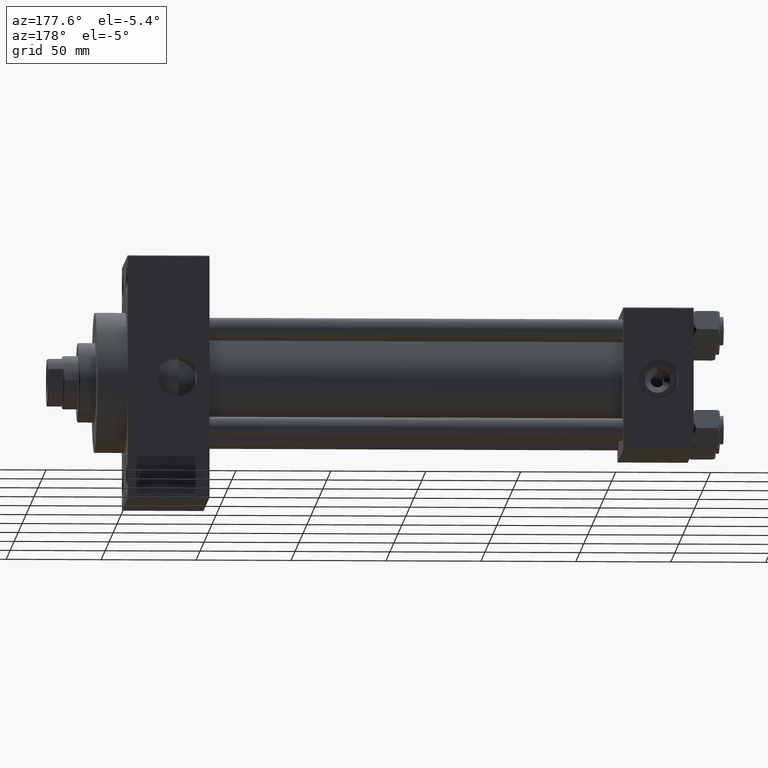
[diagram: clean part render]
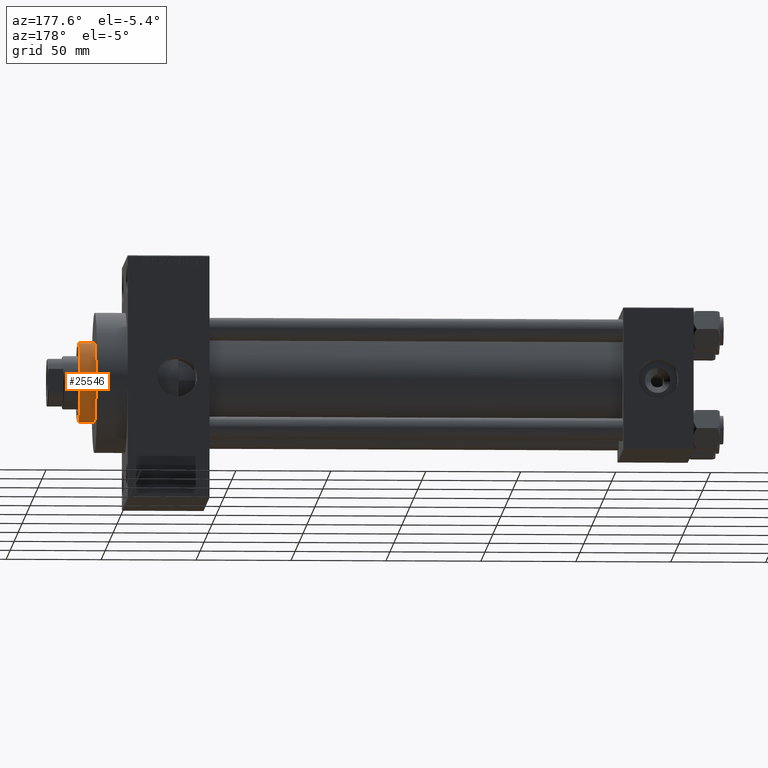
[diagram: same view with one face highlighted and labeled with its STEP entity id]
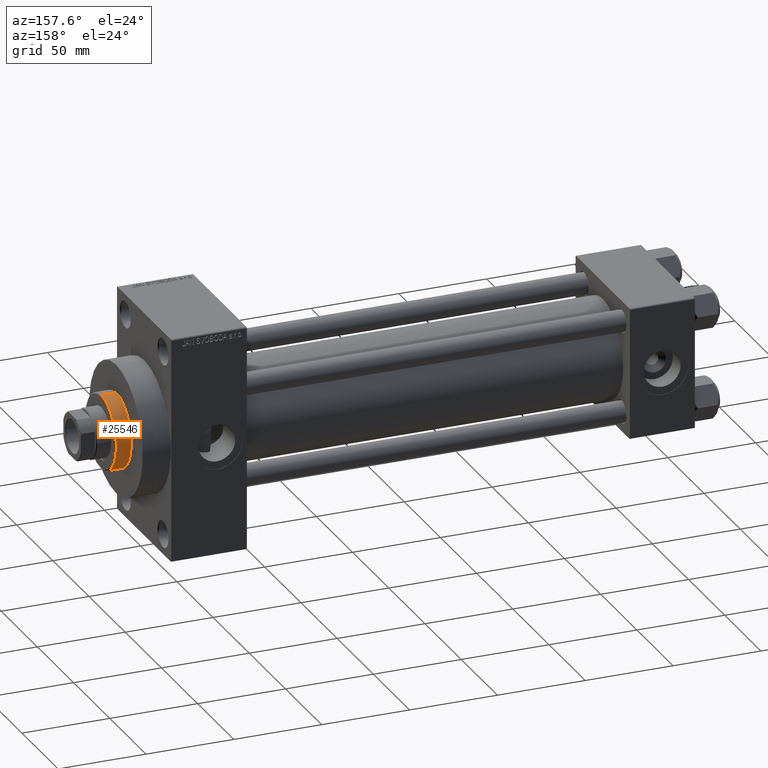
[diagram: same view with one face highlighted and labeled with its STEP entity id]
A machine part, auxiliary view. The second image highlights one B-rep face of the part: STEP entity #25546.
A second angle (auxiliary view) of the same face is appended — the face is thin or edge-on in the first view.
In plain terms, the highlighted cylindrical surface (partial cylindrical patch) has radius 21 mm, axis along (-1, 0, 0).
Its self-contained STEP definition (entity closure, byte-faithful):
#1552 = ORIENTED_EDGE ( 'NONE', *, *, #7914, .T. ) ;
#2191 = DIRECTION ( 'NONE',  ( -0.000000000000000000, -0.000000000000000000, -1.000000000000000000 ) ) ;
#2723 = CYLINDRICAL_SURFACE ( 'NONE', #11061, 21.00000000000000000 ) ;
#4161 = CIRCLE ( 'NONE', #30834, 21.00000000000000000 ) ;
#5182 = DIRECTION ( 'NONE',  ( 0.000000000000000000, 0.000000000000000000, 1.000000000000000000 ) ) ;
#5325 = EDGE_CURVE ( 'NONE', #32101, #15479, #37958, .T. ) ;
#5977 = CARTESIAN_POINT ( 'NONE',  ( 21.00000000000000000, 2.571758278209441661E-15, 43.25999999999999801 ) ) ;
#6934 = DIRECTION ( 'NONE',  ( 0.000000000000000000, 0.000000000000000000, -1.000000000000000000 ) ) ;
#7914 = EDGE_CURVE ( 'NONE', #34806, #32101, #8902, .T. ) ;
#8902 = LINE ( 'NONE', #9831, #30433 ) ;
#9196 = CARTESIAN_POINT ( 'NONE',  ( 0.000000000000000000, 0.000000000000000000, 52.25999999999999801 ) ) ;
#9831 = CARTESIAN_POINT ( 'NONE',  ( -21.00000000000000000, 0.000000000000000000, 52.25999999999999801 ) ) ;
#10628 = VECTOR ( 'NONE', #19309, 1000.000000000000000 ) ;
#11061 = AXIS2_PLACEMENT_3D ( 'NONE', #9196, #23981, #27552 ) ;
#12366 = EDGE_LOOP ( 'NONE', ( #37680, #19914, #1552, #20203 ) ) ;
#15479 = VERTEX_POINT ( 'NONE', #5977 ) ;
#19309 = DIRECTION ( 'NONE',  ( -0.000000000000000000, -0.000000000000000000, -1.000000000000000000 ) ) ;
#19737 = CARTESIAN_POINT ( 'NONE',  ( 0.000000000000000000, 0.000000000000000000, 43.25999999999999801 ) ) ;
#19914 = ORIENTED_EDGE ( 'NONE', *, *, #24945, .T. ) ;
#20203 = ORIENTED_EDGE ( 'NONE', *, *, #5325, .T. ) ;
#21491 = CARTESIAN_POINT ( 'NONE',  ( -21.00000000000000000, 0.000000000000000000, 51.75999999999999801 ) ) ;
#23750 = VERTEX_POINT ( 'NONE', #26020 ) ;
#23981 = DIRECTION ( 'NONE',  ( -0.000000000000000000, -0.000000000000000000, -1.000000000000000000 ) ) ;
#24845 = CARTESIAN_POINT ( 'NONE',  ( 0.000000000000000000, 0.000000000000000000, 51.75999999999999801 ) ) ;
#24945 = EDGE_CURVE ( 'NONE', #23750, #34806, #4161, .T. ) ;
#25546 = ADVANCED_FACE ( 'NONE', ( #28014 ), #2723, .T. ) ;
#26020 = CARTESIAN_POINT ( 'NONE',  ( 21.00000000000000000, 2.571758278209441661E-15, 51.75999999999999801 ) ) ;
#26221 = CARTESIAN_POINT ( 'NONE',  ( 21.00000000000000000, 2.571758278209441661E-15, 52.25999999999999801 ) ) ;
#26454 = LINE ( 'NONE', #26221, #10628 ) ;
#27552 = DIRECTION ( 'NONE',  ( -1.000000000000000000, 0.000000000000000000, 0.000000000000000000 ) ) ;
#28014 = FACE_OUTER_BOUND ( 'NONE', #12366, .T. ) ;
#30433 = VECTOR ( 'NONE', #2191, 1000.000000000000000 ) ;
#30834 = AXIS2_PLACEMENT_3D ( 'NONE', #24845, #6934, #39388 ) ;
#32101 = VERTEX_POINT ( 'NONE', #40994 ) ;
#34295 = DIRECTION ( 'NONE',  ( 1.000000000000000000, 0.000000000000000000, 0.000000000000000000 ) ) ;
#34806 = VERTEX_POINT ( 'NONE', #21491 ) ;
#37680 = ORIENTED_EDGE ( 'NONE', *, *, #46876, .F. ) ;
#37958 = CIRCLE ( 'NONE', #40996, 21.00000000000000000 ) ;
#39388 = DIRECTION ( 'NONE',  ( 1.000000000000000000, 0.000000000000000000, 0.000000000000000000 ) ) ;
#40994 = CARTESIAN_POINT ( 'NONE',  ( -21.00000000000000000, 0.000000000000000000, 43.25999999999999801 ) ) ;
#40996 = AXIS2_PLACEMENT_3D ( 'NONE', #19737, #5182, #34295 ) ;
#46876 = EDGE_CURVE ( 'NONE', #23750, #15479, #26454, .T. ) ;